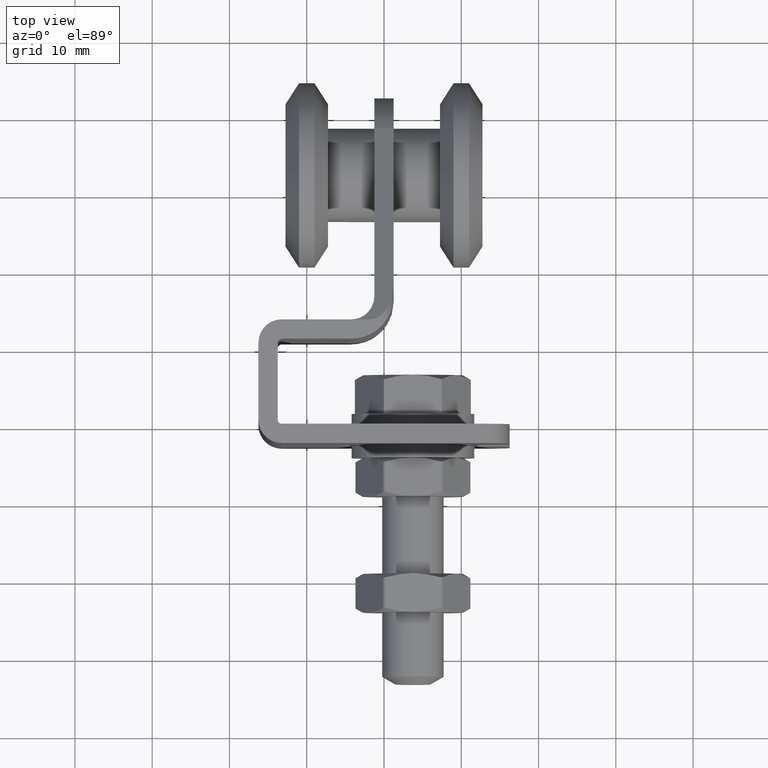
[diagram: clean part render]
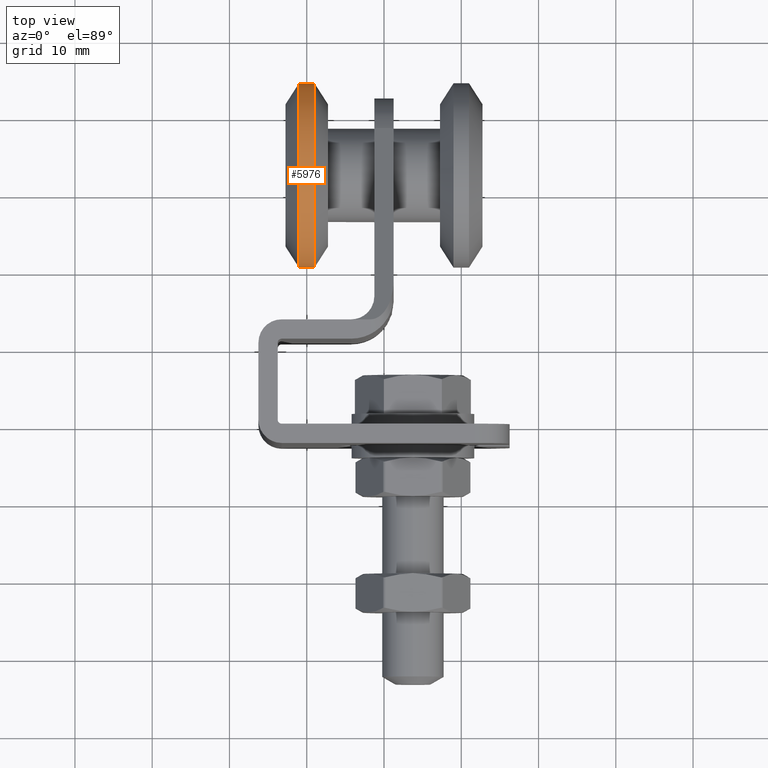
[diagram: same view with one face highlighted and labeled with its STEP entity id]
A machine part, top view. The second image highlights one B-rep face of the part: STEP entity #5976.
In plain terms, the highlighted cylindrical surface (bore or boss wall) has radius 12 mm, axis along (1, 0, 0).
Its self-contained STEP definition (entity closure, byte-faithful):
#669 = CARTESIAN_POINT ( 'NONE',  ( 10.00000000000000000, 12.50000000000000000, -0.000000000000000000 ) ) ;
#2299 = FACE_OUTER_BOUND ( 'NONE', #11490, .T. ) ;
#2333 = DIRECTION ( 'NONE',  ( 1.000000000000000000, -0.000000000000000000, 1.836970198721029688E-16 ) ) ;
#2383 = CARTESIAN_POINT ( 'NONE',  ( -9.000000000000000000, 12.50000000000000000, -3.490243377569956456E-15 ) ) ;
#2433 = AXIS2_PLACEMENT_3D ( 'NONE', #669, #7375, #15089 ) ;
#3473 = VERTEX_POINT ( 'NONE', #7336 ) ;
#4673 = EDGE_CURVE ( 'NONE', #16378, #16378, #8432, .T. ) ;
#5230 = DIRECTION ( 'NONE',  ( 1.000000000000000000, -0.000000000000000000, 1.836970198721029688E-16 ) ) ;
#5976 = ADVANCED_FACE ( 'NONE', ( #2299, #15981 ), #7613, .T. ) ;
#7210 = ORIENTED_EDGE ( 'NONE', *, *, #11497, .F. ) ;
#7336 = CARTESIAN_POINT ( 'NONE',  ( -8.999999999999998224, 12.50000000000000000, -12.00000000000000711 ) ) ;
#7375 = DIRECTION ( 'NONE',  ( 1.000000000000000000, -0.000000000000000000, 1.836970198721029688E-16 ) ) ;
#7613 = CYLINDRICAL_SURFACE ( 'NONE', #2433, 12.00000000000000355 ) ;
#8432 = CIRCLE ( 'NONE', #13907, 12.00000000000000355 ) ;
#8952 = DIRECTION ( 'NONE',  ( 1.445602896647338917E-16, 0.000000000000000000, -1.000000000000000000 ) ) ;
#11490 = EDGE_LOOP ( 'NONE', ( #13600 ) ) ;
#11497 = EDGE_CURVE ( 'NONE', #3473, #3473, #15905, .T. ) ;
#11818 = CARTESIAN_POINT ( 'NONE',  ( -10.99999999999999467, 12.50000000000000000, -3.857637417314161111E-15 ) ) ;
#13600 = ORIENTED_EDGE ( 'NONE', *, *, #4673, .T. ) ;
#13876 = CARTESIAN_POINT ( 'NONE',  ( -10.99999999999999289, 12.50000000000000000, -12.00000000000000711 ) ) ;
#13907 = AXIS2_PLACEMENT_3D ( 'NONE', #11818, #5230, #14444 ) ;
#14444 = DIRECTION ( 'NONE',  ( 1.445602896647338917E-16, 0.000000000000000000, -1.000000000000000000 ) ) ;
#14639 = AXIS2_PLACEMENT_3D ( 'NONE', #2383, #2333, #8952 ) ;
#15089 = DIRECTION ( 'NONE',  ( 1.445602896647338917E-16, 0.000000000000000000, -1.000000000000000000 ) ) ;
#15170 = EDGE_LOOP ( 'NONE', ( #7210 ) ) ;
#15905 = CIRCLE ( 'NONE', #14639, 12.00000000000000355 ) ;
#15981 = FACE_OUTER_BOUND ( 'NONE', #15170, .T. ) ;
#16378 = VERTEX_POINT ( 'NONE', #13876 ) ;